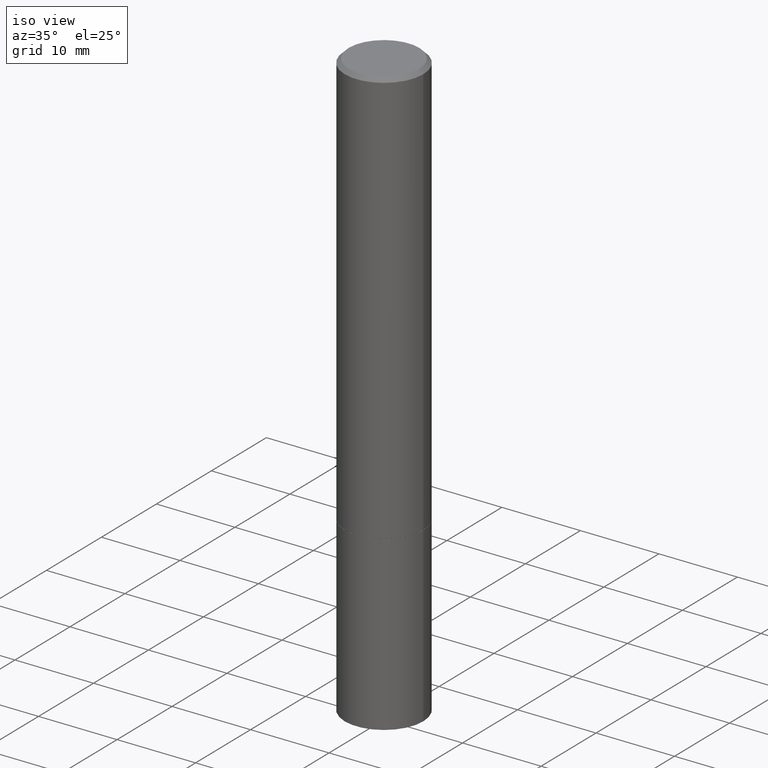
[diagram: clean part render]
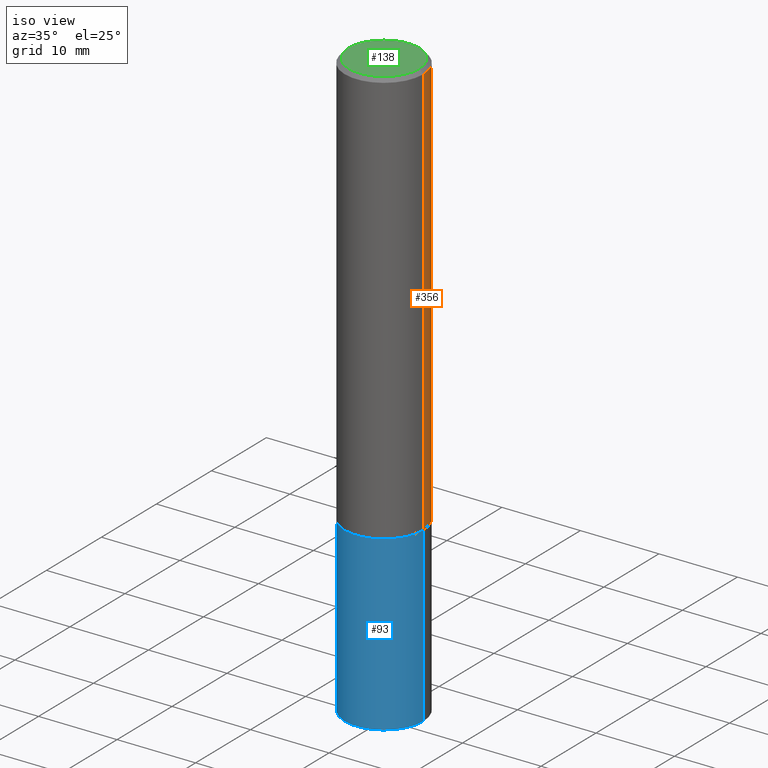
[diagram: same view with three faces highlighted in distinct colors, each labeled with its STEP entity id]
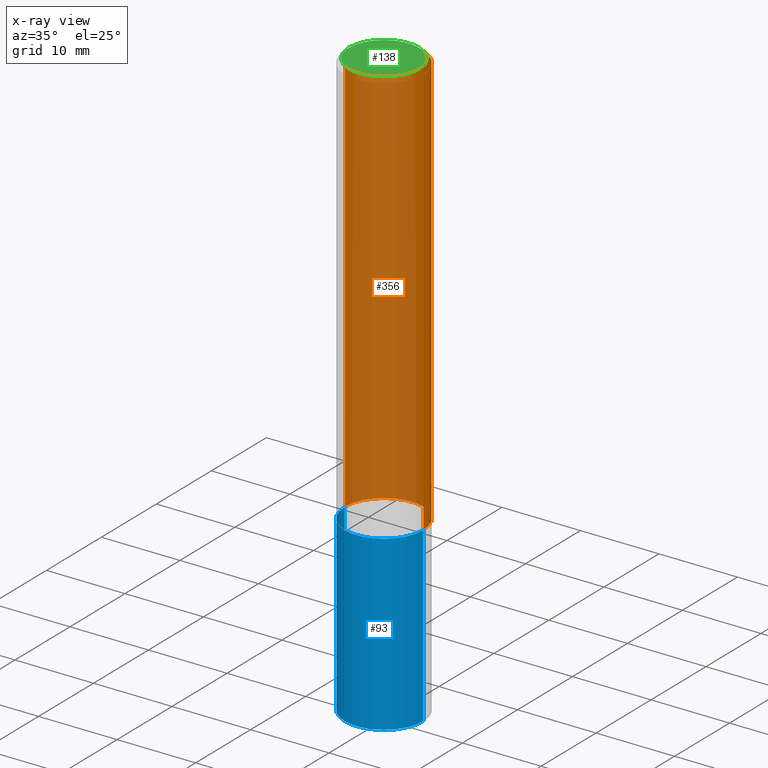
[diagram: x-ray of the same camera — body ghosted, the three highlighted faces saturated]
A machine part, iso view with three faces highlighted in distinct colors.
The next image is the same camera in x-ray (body ghosted, the three faces saturated) — at least one of them is partly hidden behind the body in this view.
Their STEP definitions:

[orange] entity #356 — the highlighted cylindrical surface (partial cylindrical patch) has radius 5 mm, axis along (-0, 0, 1).
#1 = CARTESIAN_POINT ( 'NONE',  ( 5.100514289060338336E-29, -7.282182628425147921E-15, -2.085699999999999665 ) ) ;
#5 = CARTESIAN_POINT ( 'NONE',  ( 4.890937612370276662E-31, -6.982962677686296539E-17, -0.02000000000000001776 ) ) ;
#9 = DIRECTION ( 'NONE',  ( -2.445468806185136597E-29, 3.491481338843145583E-15, 1.000000000000000000 ) ) ;
#14 = CYLINDRICAL_SURFACE ( 'NONE', #166, 0.1968499999999999139 ) ;
#33 = CARTESIAN_POINT ( 'NONE',  ( 0.1968499999999997752, -1.420318657638187347E-15, -0.02000000000000001776 ) ) ;
#39 = CARTESIAN_POINT ( 'NONE',  ( 0.1968499999999999139, -1.374596203102541017E-15, 9.598753983154295253E-30 ) ) ;
#52 = VERTEX_POINT ( 'NONE', #230 ) ;
#60 = DIRECTION ( 'NONE',  ( -2.445468806185136877E-29, 3.491481338843145188E-15, 1.000000000000000000 ) ) ;
#116 = CARTESIAN_POINT ( 'NONE',  ( -0.1968499999999999139, 1.398703375343756604E-15, -9.682923725166778072E-30 ) ) ;
#128 = ORIENTED_EDGE ( 'NONE', *, *, #167, .T. ) ;
#144 = CARTESIAN_POINT ( 'NONE',  ( -0.1968499999999997752, 1.304766576325677127E-15, -0.02000000000000001776 ) ) ;
#147 = LINE ( 'NONE', #116, #281 ) ;
#149 = EDGE_CURVE ( 'NONE', #276, #193, #298, .T. ) ;
#155 = DIRECTION ( 'NONE',  ( 1.000000000000000000, -6.982962677686266711E-15, 4.876176775795935793E-29 ) ) ;
#166 = AXIS2_PLACEMENT_3D ( 'NONE', #275, #9, #155 ) ;
#167 = EDGE_CURVE ( 'NONE', #354, #193, #147, .T. ) ;
#193 = VERTEX_POINT ( 'NONE', #144 ) ;
#205 = DIRECTION ( 'NONE',  ( 1.000000000000000000, -6.982962677686267499E-15, 0.000000000000000000 ) ) ;
#207 = EDGE_CURVE ( 'NONE', #52, #354, #213, .T. ) ;
#208 = DIRECTION ( 'NONE',  ( 1.000000000000000000, -6.982962677686266711E-15, 0.000000000000000000 ) ) ;
#213 = CIRCLE ( 'NONE', #335, 0.1968500000000000250 ) ;
#219 = ORIENTED_EDGE ( 'NONE', *, *, #344, .F. ) ;
#230 = CARTESIAN_POINT ( 'NONE',  ( 0.1968500000000000250, -8.656778831527691107E-15, -2.085699999999999665 ) ) ;
#234 = VECTOR ( 'NONE', #272, 39.37007874015748143 ) ;
#237 = DIRECTION ( 'NONE',  ( -2.445468806185136597E-29, 3.491481338843145583E-15, 1.000000000000000000 ) ) ;
#242 = FACE_OUTER_BOUND ( 'NONE', #361, .T. ) ;
#248 = CARTESIAN_POINT ( 'NONE',  ( -0.1968500000000000250, -2.277302752257247033E-15, -2.085699999999999665 ) ) ;
#267 = DIRECTION ( 'NONE',  ( -2.445468806185136597E-29, 3.491481338843145583E-15, 1.000000000000000000 ) ) ;
#272 = DIRECTION ( 'NONE',  ( -2.445468806185136877E-29, 3.491481338843145188E-15, 1.000000000000000000 ) ) ;
#275 = CARTESIAN_POINT ( 'NONE',  ( 0.000000000000000000, 0.000000000000000000, 0.000000000000000000 ) ) ;
#276 = VERTEX_POINT ( 'NONE', #33 ) ;
#281 = VECTOR ( 'NONE', #60, 39.37007874015748143 ) ;
#298 = CIRCLE ( 'NONE', #346, 0.1968499999999997752 ) ;
#302 = ORIENTED_EDGE ( 'NONE', *, *, #149, .F. ) ;
#320 = LINE ( 'NONE', #39, #234 ) ;
#335 = AXIS2_PLACEMENT_3D ( 'NONE', #1, #267, #205 ) ;
#344 = EDGE_CURVE ( 'NONE', #52, #276, #320, .T. ) ;
#346 = AXIS2_PLACEMENT_3D ( 'NONE', #5, #237, #208 ) ;
#350 = ORIENTED_EDGE ( 'NONE', *, *, #207, .T. ) ;
#354 = VERTEX_POINT ( 'NONE', #248 ) ;
#356 = ADVANCED_FACE ( 'NONE', ( #242 ), #14, .T. ) ;
#361 = EDGE_LOOP ( 'NONE', ( #350, #128, #302, #219 ) ) ;

[blue] entity #93 — the highlighted cylindrical surface (partial cylindrical patch) has radius 5 mm, axis along (-0, 0, 1).
#3 = CARTESIAN_POINT ( 'NONE',  ( 0.1968500000000000250, -1.374596203102541608E-15, 9.598753983154300858E-30 ) ) ;
#15 = ORIENTED_EDGE ( 'NONE', *, *, #260, .T. ) ;
#22 = FACE_OUTER_BOUND ( 'NONE', #212, .T. ) ;
#30 = AXIS2_PLACEMENT_3D ( 'NONE', #263, #317, #177 ) ;
#32 = LINE ( 'NONE', #3, #119 ) ;
#48 = VERTEX_POINT ( 'NONE', #198 ) ;
#56 = AXIS2_PLACEMENT_3D ( 'NONE', #78, #366, #111 ) ;
#75 = VERTEX_POINT ( 'NONE', #257 ) ;
#78 = CARTESIAN_POINT ( 'NONE',  ( 0.000000000000000000, 0.000000000000000000, 0.000000000000000000 ) ) ;
#93 = ADVANCED_FACE ( 'NONE', ( #22 ), #224, .T. ) ;
#98 = EDGE_CURVE ( 'NONE', #48, #75, #337, .T. ) ;
#101 = ORIENTED_EDGE ( 'NONE', *, *, #211, .F. ) ;
#111 = DIRECTION ( 'NONE',  ( 1.000000000000000000, -6.982962677686265922E-15, 4.876176775795935793E-29 ) ) ;
#113 = DIRECTION ( 'NONE',  ( -2.445468806185136877E-29, 3.491481338843145188E-15, 1.000000000000000000 ) ) ;
#117 = CARTESIAN_POINT ( 'NONE',  ( 0.1968500000000000250, -1.168424230043858014E-14, -2.952799999999999869 ) ) ;
#119 = VECTOR ( 'NONE', #113, 39.37007874015748143 ) ;
#139 = VERTEX_POINT ( 'NONE', #117 ) ;
#142 = VECTOR ( 'NONE', #202, 39.37007874015748143 ) ;
#143 = CARTESIAN_POINT ( 'NONE',  ( 0.1968500000000000250, -8.660270312866532536E-15, -2.086699999999999999 ) ) ;
#158 = ORIENTED_EDGE ( 'NONE', *, *, #98, .F. ) ;
#177 = DIRECTION ( 'NONE',  ( 1.000000000000000000, -6.982962677686267499E-15, 0.000000000000000000 ) ) ;
#188 = CARTESIAN_POINT ( 'NONE',  ( 7.220980290903470182E-29, -1.030964609733603853E-14, -2.952799999999999869 ) ) ;
#195 = VERTEX_POINT ( 'NONE', #143 ) ;
#198 = CARTESIAN_POINT ( 'NONE',  ( -0.1968500000000000250, -7.398956728206258518E-15, -2.952799999999999869 ) ) ;
#202 = DIRECTION ( 'NONE',  ( -2.445468806185136877E-29, 3.491481338843145188E-15, 1.000000000000000000 ) ) ;
#209 = DIRECTION ( 'NONE',  ( 1.000000000000000000, -6.982962677686267499E-15, 0.000000000000000000 ) ) ;
#211 = EDGE_CURVE ( 'NONE', #75, #195, #252, .T. ) ;
#212 = EDGE_LOOP ( 'NONE', ( #158, #244, #15, #101 ) ) ;
#224 = CYLINDRICAL_SURFACE ( 'NONE', #56, 0.1968500000000000250 ) ;
#244 = ORIENTED_EDGE ( 'NONE', *, *, #280, .T. ) ;
#252 = CIRCLE ( 'NONE', #30, 0.1968500000000000250 ) ;
#257 = CARTESIAN_POINT ( 'NONE',  ( -0.1968500000000000250, -7.398956728206258518E-15, -2.086699999999999999 ) ) ;
#260 = EDGE_CURVE ( 'NONE', #139, #195, #32, .T. ) ;
#263 = CARTESIAN_POINT ( 'NONE',  ( 5.102959757866523939E-29, -7.285674109763990928E-15, -2.086699999999999999 ) ) ;
#274 = AXIS2_PLACEMENT_3D ( 'NONE', #188, #347, #209 ) ;
#280 = EDGE_CURVE ( 'NONE', #48, #139, #328, .T. ) ;
#305 = CARTESIAN_POINT ( 'NONE',  ( -0.1968500000000000250, 1.398703375343757393E-15, -9.682923725166783677E-30 ) ) ;
#317 = DIRECTION ( 'NONE',  ( -2.445468806185136597E-29, 3.491481338843145583E-15, 1.000000000000000000 ) ) ;
#328 = CIRCLE ( 'NONE', #274, 0.1968500000000000250 ) ;
#337 = LINE ( 'NONE', #305, #142 ) ;
#347 = DIRECTION ( 'NONE',  ( -2.445468806185136597E-29, 3.491481338843145583E-15, 1.000000000000000000 ) ) ;
#366 = DIRECTION ( 'NONE',  ( -2.445468806185136597E-29, 3.491481338843145583E-15, 1.000000000000000000 ) ) ;

[green] entity #138 — the highlighted planar face has unit normal (0, -0, -1).
#20 = VERTEX_POINT ( 'NONE', #171 ) ;
#23 = DIRECTION ( 'NONE',  ( -2.445468806185136597E-29, 3.491481338843145583E-15, 1.000000000000000000 ) ) ;
#31 = DIRECTION ( 'NONE',  ( -1.000000000000000000, 6.982962677686265922E-15, -4.876176775795935793E-29 ) ) ;
#35 = AXIS2_PLACEMENT_3D ( 'NONE', #332, #141, #261 ) ;
#55 = EDGE_CURVE ( 'NONE', #20, #190, #184, .T. ) ;
#66 = CIRCLE ( 'NONE', #35, 0.1768499999999997851 ) ;
#83 = EDGE_CURVE ( 'NONE', #190, #20, #66, .T. ) ;
#138 = ADVANCED_FACE ( 'NONE', ( #172 ), #180, .F. ) ;
#141 = DIRECTION ( 'NONE',  ( -2.445468806185136597E-29, 3.491481338843145583E-15, 1.000000000000000000 ) ) ;
#171 = CARTESIAN_POINT ( 'NONE',  ( 0.1768499999999997851, -1.316798864272040563E-15, 4.268512490109333727E-18 ) ) ;
#172 = FACE_OUTER_BOUND ( 'NONE', #240, .T. ) ;
#180 = PLANE ( 'NONE',  #203 ) ;
#184 = CIRCLE ( 'NONE', #197, 0.1768499999999997851 ) ;
#190 = VERTEX_POINT ( 'NONE', #206 ) ;
#197 = AXIS2_PLACEMENT_3D ( 'NONE', #311, #23, #288 ) ;
#203 = AXIS2_PLACEMENT_3D ( 'NONE', #265, #290, #31 ) ;
#206 = CARTESIAN_POINT ( 'NONE',  ( -0.1768499999999997851, 1.269851762937246069E-15, 4.268512490091652920E-18 ) ) ;
#240 = EDGE_LOOP ( 'NONE', ( #255, #271 ) ) ;
#255 = ORIENTED_EDGE ( 'NONE', *, *, #83, .T. ) ;
#261 = DIRECTION ( 'NONE',  ( 1.000000000000000000, -6.982962677686266711E-15, 4.875932113059884174E-29 ) ) ;
#265 = CARTESIAN_POINT ( 'NONE',  ( 1.234936949548814617E-15, 0.1768499999999997851, -6.153342185293593634E-16 ) ) ;
#271 = ORIENTED_EDGE ( 'NONE', *, *, #55, .T. ) ;
#288 = DIRECTION ( 'NONE',  ( 1.000000000000000000, -6.982962677686266711E-15, 4.875932113059884174E-29 ) ) ;
#290 = DIRECTION ( 'NONE',  ( 2.438088387897960049E-29, -3.491481338843145188E-15, -1.000000000000000000 ) ) ;
#311 = CARTESIAN_POINT ( 'NONE',  ( -1.043851414335219820E-46, 1.490343170380447200E-32, 4.268512490100411279E-18 ) ) ;
#332 = CARTESIAN_POINT ( 'NONE',  ( -1.043851414335219820E-46, 1.490343170380447200E-32, 4.268512490100411279E-18 ) ) ;